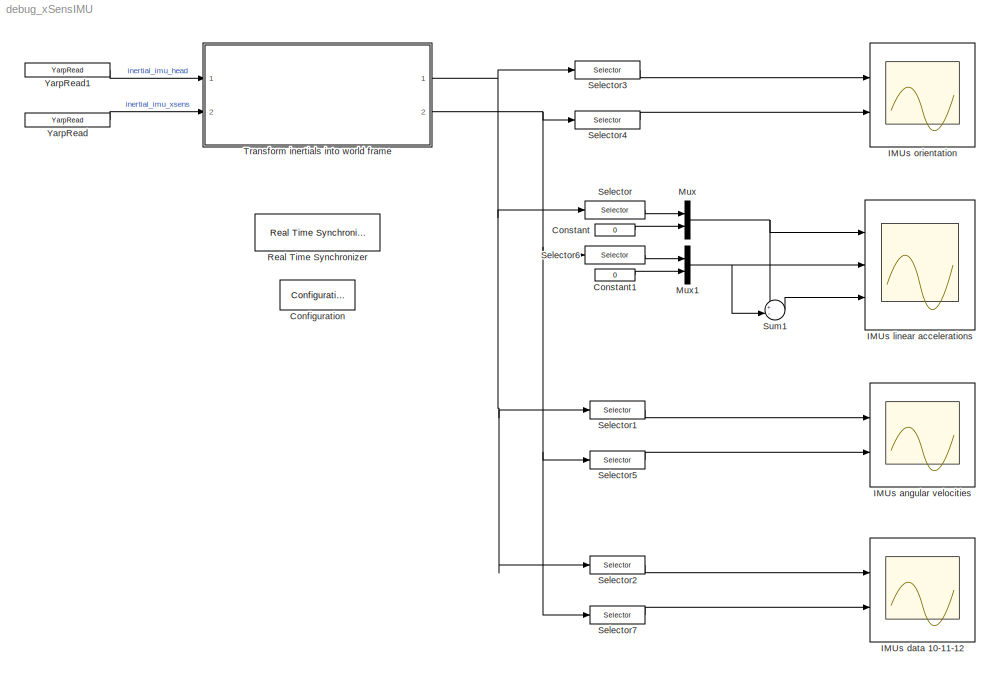
MODEL debug_xSensIMU
KIND model
CONFIG InitFcn = ROBOT_DOF=23;
BLOCK [Reference] Configuration  REF=WBToolboxLibrary/Utilities/Configuration
  ConfigObject = 'WBTConfigRobot'
  ConfigSource = Workspace
  ControlBoardsNames = {'left_arm','right_arm','torso'}
  ControlledJoints = {'l_elbow','l_shoulder_pitch','torso_roll'}
  GravityVector = [0,0,-9.81]
  LocalName = 'WBT'
  Ports = []
  RTWMemSecDataConstants = Inherit from model
  RTWMemSecDataInternal = Inherit from model
  RTWMemSecDataParameters = Inherit from model
  RTWMemSecFuncExecute = Inherit from model
  RTWMemSecFuncInitTerm = Inherit from model
  RobotName = 'icub'
  SID = 80
  SourceBlock = WBToolboxLibrary/Utilities/Configuration
  SourceProductName = WholeBodyToolbox
  UrdfFile = 'model.urdf'
BLOCK [Constant] Constant
  SID = 12
  Value = 0
BLOCK [Constant] Constant1
  SID = 55
  Value = 0
BLOCK [Scope] IMUs angular velocities
  Floating = off
  NumInputPorts = 2
  Ports = [2]
  SID = 50
  ScopeSpecificationString = Simulink.scopes.TimeScopeBlockCfg('CurrentConfiguration', extmgr.ConfigurationSet(extmgr.Configuration('Core','General UI',true),extmgr.Configuration('Core','Source UI',true),extmgr.Configuration('Sources','WiredSimulink',true,'DataLoggingVariableName','ScopeData2'),extmgr.Configuration('Visuals','Time Domain',true,'SerializedDisplays',{struct('MinYLimReal','-37.69569','MaxYLimReal','38.70376','YL...<+2017ch>
BLOCK [Scope] IMUs data 10-11-12
  Floating = off
  NumInputPorts = 2
  Ports = [2]
  SID = 51
  ScopeSpecificationString = Simulink.scopes.TimeScopeBlockCfg('CurrentConfiguration', extmgr.ConfigurationSet(extmgr.Configuration('Core','General UI',true),extmgr.Configuration('Core','Source UI',true),extmgr.Configuration('Sources','WiredSimulink',true,'DataLoggingVariableName','ScopeData3'),extmgr.Configuration('Visuals','Time Domain',true,'SerializedDisplays',{struct('MinYLimReal','-269.32411','MaxYLimReal','88.18615','Y...<+2016ch>
BLOCK [Scope] IMUs linear accelerations
  Floating = off
  NumInputPorts = 3
  Ports = [3]
  SID = 49
  ScopeSpecificationString = Simulink.scopes.TimeScopeBlockCfg('CurrentConfiguration', extmgr.ConfigurationSet(extmgr.Configuration('Core','General UI',true),extmgr.Configuration('Core','Source UI',true),extmgr.Configuration('Sources','WiredSimulink',true,'DataLoggingVariableName','ScopeData1'),extmgr.Configuration('Visuals','Time Domain',true,'SerializedDisplays',{struct('MinYLimReal','-5.95919','MaxYLimReal','13.15614','YLa...<+2708ch>
BLOCK [Scope] IMUs orientation
  Floating = off
  NumInputPorts = 2
  Ports = [2]
  SID = 25
  ScopeSpecificationString = Simulink.scopes.TimeScopeBlockCfg('CurrentConfiguration', extmgr.ConfigurationSet(extmgr.Configuration('Core','General UI',true),extmgr.Configuration('Core','Source UI',true),extmgr.Configuration('Sources','WiredSimulink',true,'DataLoggingVariableName','ScopeData3'),extmgr.Configuration('Visuals','Time Domain',true,'SerializedDisplays',{struct('MinYLimReal','-12.17243','MaxYLimReal','49.15977','YL...<+2018ch>
BLOCK [Mux] Mux
  DisplayOption = bar
  Inputs = 2
  Ports = [2, 1]
  SID = 52
BLOCK [Mux] Mux1
  DisplayOption = bar
  Inputs = 2
  Ports = [2, 1]
  SID = 56
BLOCK [Reference] Real Time Synchronizer  REF=WBToolboxLibrary/Utilities/Real Time Synchronizer
  MultiThreadCoSim = auto
  Ports = []
  SID = 16
  SourceBlock = WBToolboxLibrary/Utilities/Real Time Synchronizer
  SourceProductName = WholeBodyToolbox
  SourceType = Real Time Synchronizer
  period = 0.01
BLOCK [Selector] Selector
  IndexOptions = Index vector (dialog)
  Indices = [4:6]
  InputPortWidth = 12
  OutputSizes = 1
  Ports = [1, 1]
  SID = 11
BLOCK [Selector] Selector1
  IndexOptions = Index vector (dialog)
  Indices = [7:9]
  InputPortWidth = 12
  OutputSizes = 1
  Ports = [1, 1]
  SID = 19
BLOCK [Selector] Selector2
  IndexOptions = Index vector (dialog)
  Indices = [10:12]
  InputPortWidth = 12
  OutputSizes = 1
  Ports = [1, 1]
  SID = 23
BLOCK [Selector] Selector3
  IndexOptions = Index vector (dialog)
  Indices = [1:3]
  InputPortWidth = 12
  OutputSizes = 1
  Ports = [1, 1]
  SID = 26
BLOCK [Selector] Selector4
  IndexOptions = Index vector (dialog)
  Indices = [1:3]
  InputPortWidth = 12
  OutputSizes = 1
  Ports = [1, 1]
  SID = 53
BLOCK [Selector] Selector5
  IndexOptions = Index vector (dialog)
  Indices = [7:9]
  InputPortWidth = 12
  OutputSizes = 1
  Ports = [1, 1]
  SID = 58
BLOCK [Selector] Selector6
  IndexOptions = Index vector (dialog)
  Indices = [4:6]
  InputPortWidth = 12
  OutputSizes = 1
  Ports = [1, 1]
  SID = 57
BLOCK [Selector] Selector7
  IndexOptions = Index vector (dialog)
  Indices = [10:12]
  InputPortWidth = 12
  OutputSizes = 1
  Ports = [1, 1]
  SID = 59
BLOCK [Sum] Sum1
  Inputs = +-|
  Ports = [2, 1]
  SID = 61
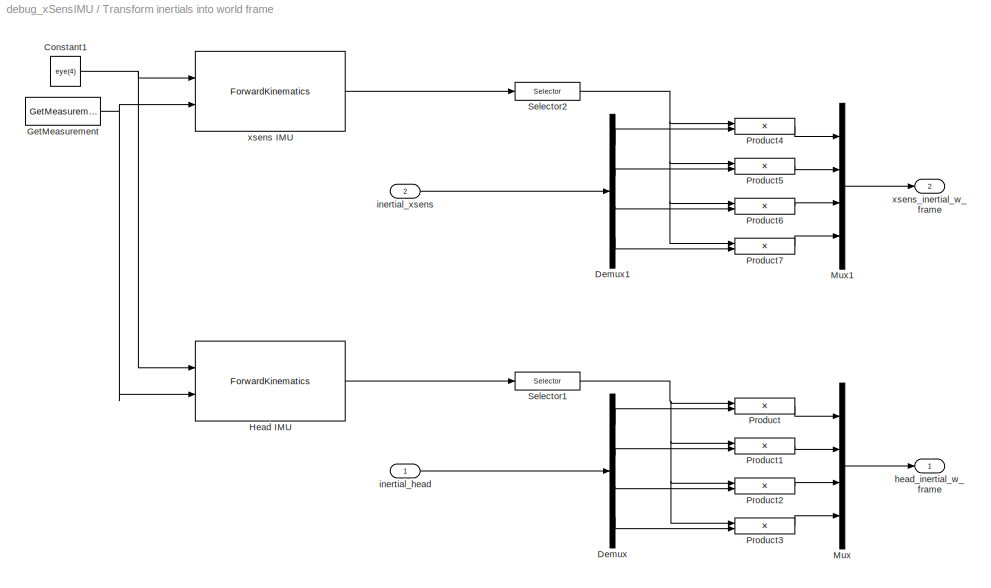
BLOCK [SubSystem] Transform inertials into world frame
  Ports = [2, 2]
  RequestExecContextInheritance = off
  SID = 31
BLOCK [Constant] Transform inertials into world frame/Constant1
  SID = 30
  Value = eye(4)
BLOCK [Demux] Transform inertials into world frame/Demux
  Outputs = [3;3;3;3]
  Ports = [1, 4]
  SID = 42
BLOCK [Demux] Transform inertials into world frame/Demux1
  Outputs = [3;3;3;3]
  Ports = [1, 4]
  SID = 67
BLOCK [Reference] Transform inertials into world frame/GetMeasurement  REF=WBToolboxLibrary/States/GetMeasurement
  Ports = [0, 1]
  RTWMemSecDataConstants = Inherit from model
  RTWMemSecDataInternal = Inherit from model
  RTWMemSecDataParameters = Inherit from model
  RTWMemSecFuncExecute = Inherit from model
  RTWMemSecFuncInitTerm = Inherit from model
  SID = 79
  SourceBlock = WBToolboxLibrary/States/GetMeasurement
  SourceProductName = WholeBodyToolbox
  SourceType = GetMeasurement
  measuredType = Joints Position
BLOCK [Reference] Transform inertials into world frame/Head IMU  REF=WBToolboxLibrary/Model/Kinematics/ForwardKinematics
  Ports = [2, 1]
  RTWMemSecDataConstants = Inherit from model
  RTWMemSecDataInternal = Inherit from model
  RTWMemSecDataParameters = Inherit from model
  RTWMemSecFuncExecute = Inherit from model
  RTWMemSecFuncInitTerm = Inherit from model
  SID = 28
  SourceBlock = WBToolboxLibrary/Model/Kinematics/ForwardKinematics
  SourceProductName = WholeBodyToolbox
  SourceType = ForwardKinematics
  frameName = 'imu_frame'
BLOCK [Mux] Transform inertials into world frame/Mux
  DisplayOption = bar
  Ports = [4, 1]
  SID = 47
BLOCK [Mux] Transform inertials into world frame/Mux1
  DisplayOption = bar
  Ports = [4, 1]
  SID = 68
BLOCK [Product] Transform inertials into world frame/Product
  Multiplication = Matrix(*)
  Ports = [2, 1]
  SID = 43
BLOCK [Product] Transform inertials into world frame/Product1
  Multiplication = Matrix(*)
  Ports = [2, 1]
  SID = 44
BLOCK [Product] Transform inertials into world frame/Product2
  Multiplication = Matrix(*)
  Ports = [2, 1]
  SID = 45
BLOCK [Product] Transform inertials into world frame/Product3
  Multiplication = Matrix(*)
  Ports = [2, 1]
  SID = 46
BLOCK [Product] Transform inertials into world frame/Product4
  Multiplication = Matrix(*)
  Ports = [2, 1]
  SID = 69
BLOCK [Product] Transform inertials into world frame/Product5
  Multiplication = Matrix(*)
  Ports = [2, 1]
  SID = 70
BLOCK [Product] Transform inertials into world frame/Product6
  Multiplication = Matrix(*)
  Ports = [2, 1]
  SID = 71
BLOCK [Product] Transform inertials into world frame/Product7
  Multiplication = Matrix(*)
  Ports = [2, 1]
  SID = 72
BLOCK [Selector] Transform inertials into world frame/Selector1
  IndexOptions = Index vector (dialog),Index vector (dialog)
  Indices = [1:3],[1:3]
  InputPortWidth = 12
  NumberOfDimensions = 2
  OutputSizes = 1,1
  Ports = [1, 1]
  SID = 77
BLOCK [Selector] Transform inertials into world frame/Selector2
  IndexOptions = Index vector (dialog),Index vector (dialog)
  Indices = [1:3],[1:3]
  InputPortWidth = 12
  NumberOfDimensions = 2
  OutputSizes = 1,1
  Ports = [1, 1]
  SID = 78
BLOCK [Outport] Transform inertials into world frame/head_inertial_w_frame
  SID = 48
  VectorParamsAs1DForOutWhenUnconnected = off
BLOCK [Inport] Transform inertials into world frame/inertial_head
  SID = 74
BLOCK [Inport] Transform inertials into world frame/inertial_xsens
  Port = 2
  SID = 75
BLOCK [Reference] Transform inertials into world frame/xsens IMU  REF=WBToolboxLibrary/Model/Kinematics/ForwardKinematics
  Ports = [2, 1]
  RTWMemSecDataConstants = Inherit from model
  RTWMemSecDataInternal = Inherit from model
  RTWMemSecDataParameters = Inherit from model
  RTWMemSecFuncExecute = Inherit from model
  RTWMemSecFuncInitTerm = Inherit from model
  SID = 35
  SourceBlock = WBToolboxLibrary/Model/Kinematics/ForwardKinematics
  SourceProductName = WholeBodyToolbox
  SourceType = ForwardKinematics
  frameName = 'root_link_imu_frame'
BLOCK [Outport] Transform inertials into world frame/xsens_inertial_w_frame
  Port = 2
  SID = 73
  VectorParamsAs1DForOutWhenUnconnected = off
BLOCK [Reference] YarpRead  REF=WBToolboxLibrary/Utilities/YarpRead
  MultiThreadCoSim = auto
  Ports = [0, 1]
  SID = 17
  SourceBlock = WBToolboxLibrary/Utilities/YarpRead
  SourceProductName = WholeBodyToolbox
  SourceType = YARP Read
  autoconnect = on
  blocking = off
  errorOnConnection = off
  portName = '/icub/xsens_inertial'
  signalSize = 12
  timeout = 0.5
  timestamp = off
BLOCK [Reference] YarpRead1  REF=WBToolboxLibrary/Utilities/YarpRead
  MultiThreadCoSim = auto
  Ports = [0, 1]
  SID = 27
  SourceBlock = WBToolboxLibrary/Utilities/YarpRead
  SourceProductName = WholeBodyToolbox
  SourceType = YARP Read
  autoconnect = on
  blocking = off
  errorOnConnection = off
  portName = '/icub/inertial'
  signalSize = 12
  timeout = 0.5
  timestamp = off
LINE Constant1:1 -> Mux1:2
LINE Constant:1 -> Mux:2
NET Mux1:1 -> IMUs linear accelerations:2, Sum1:2
NET Mux:1 -> IMUs linear accelerations:1, Sum1:1
LINE Selector1:1 -> IMUs angular velocities:1
LINE Selector2:1 -> IMUs data 10-11-12:1
LINE Selector3:1 -> IMUs orientation:1
LINE Selector4:1 -> IMUs orientation:2
LINE Selector5:1 -> IMUs angular velocities:2
LINE Selector6:1 -> Mux1:1
LINE Selector7:1 -> IMUs data 10-11-12:2
LINE Selector:1 -> Mux:1
LINE Sum1:1 -> IMUs linear accelerations:3
NET Transform inertials into world frame/Constant1:1 -> Transform inertials into world frame/Head IMU:1, Transform inertials into world frame/xsens IMU:1
LINE Transform inertials into world frame/Demux1:1 -> Transform inertials into world frame/Product4:2
LINE Transform inertials into world frame/Demux1:2 -> Transform inertials into world frame/Product5:2
LINE Transform inertials into world frame/Demux1:3 -> Transform inertials into world frame/Product6:2
LINE Transform inertials into world frame/Demux1:4 -> Transform inertials into world frame/Product7:2
LINE Transform inertials into world frame/Demux:1 -> Transform inertials into world frame/Product:2
LINE Transform inertials into world frame/Demux:2 -> Transform inertials into world frame/Product1:2
LINE Transform inertials into world frame/Demux:3 -> Transform inertials into world frame/Product2:2
LINE Transform inertials into world frame/Demux:4 -> Transform inertials into world frame/Product3:2
NET Transform inertials into world frame/GetMeasurement:1 -> Transform inertials into world frame/Head IMU:2, Transform inertials into world frame/xsens IMU:2
LINE Transform inertials into world frame/Head IMU:1 -> Transform inertials into world frame/Selector1:1
LINE Transform inertials into world frame/Mux1:1 -> Transform inertials into world frame/xsens_inertial_w_frame:1
LINE Transform inertials into world frame/Mux:1 -> Transform inertials into world frame/head_inertial_w_frame:1
LINE Transform inertials into world frame/Product1:1 -> Transform inertials into world frame/Mux:2
LINE Transform inertials into world frame/Product2:1 -> Transform inertials into world frame/Mux:3
LINE Transform inertials into world frame/Product3:1 -> Transform inertials into world frame/Mux:4
LINE Transform inertials into world frame/Product4:1 -> Transform inertials into world frame/Mux1:1
LINE Transform inertials into world frame/Product5:1 -> Transform inertials into world frame/Mux1:2
LINE Transform inertials into world frame/Product6:1 -> Transform inertials into world frame/Mux1:3
LINE Transform inertials into world frame/Product7:1 -> Transform inertials into world frame/Mux1:4
LINE Transform inertials into world frame/Product:1 -> Transform inertials into world frame/Mux:1
NET Transform inertials into world frame/Selector1:1 -> Transform inertials into world frame/Product1:1, Transform inertials into world frame/Product2:1, Transform inertials into world frame/Product3:1, Transform inertials into world frame/Product:1
NET Transform inertials into world frame/Selector2:1 -> Transform inertials into world frame/Product4:1, Transform inertials into world frame/Product5:1, Transform inertials into world frame/Product6:1, Transform inertials into world frame/Product7:1
LINE Transform inertials into world frame/inertial_head:1 -> Transform inertials into world frame/Demux:1
LINE Transform inertials into world frame/inertial_xsens:1 -> Transform inertials into world frame/Demux1:1
LINE Transform inertials into world frame/xsens IMU:1 -> Transform inertials into world frame/Selector2:1
NET Transform inertials into world frame:1 -> Selector1:1, Selector2:1, Selector3:1, Selector:1
NET Transform inertials into world frame:2 -> Selector4:1, Selector5:1, Selector6:1, Selector7:1
LINE YarpRead1:1 -> Transform inertials into world frame:1
LINE YarpRead:1 -> Transform inertials into world frame:2
note: NET lines group one-source signal fan-out (src -> all destinations, sorted); 1:1 wires keep LINE
